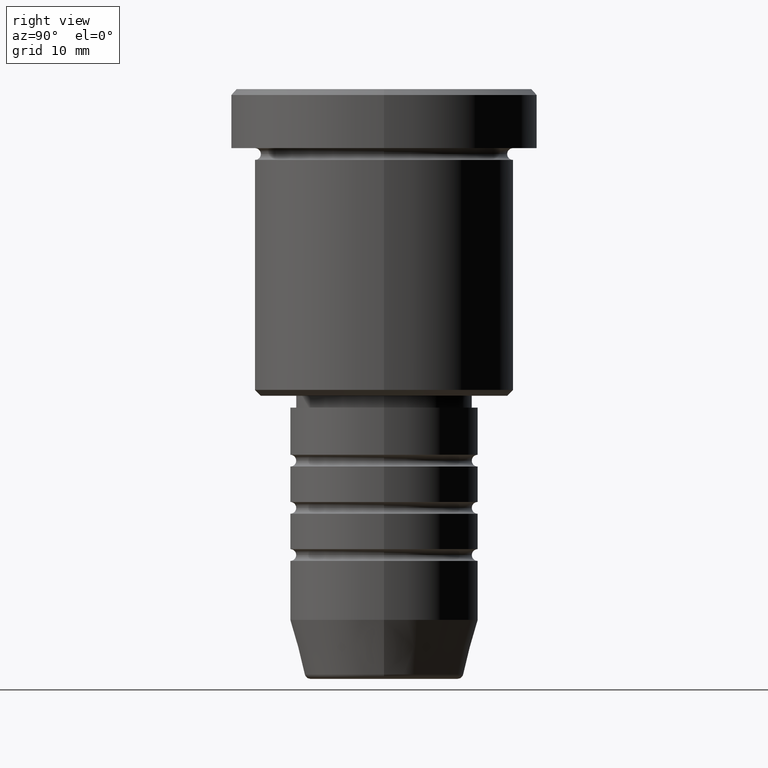
[diagram: clean part render]
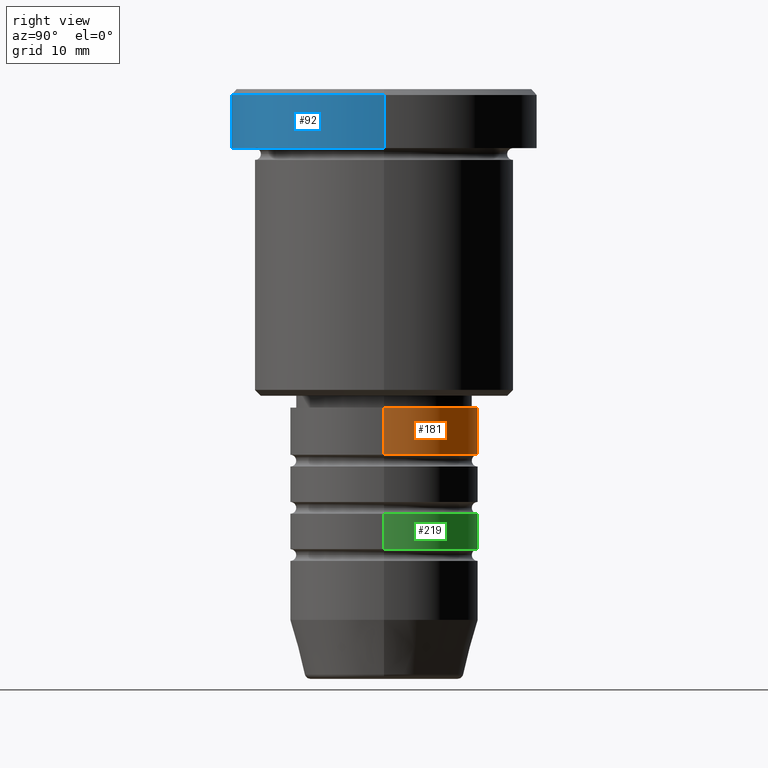
[diagram: same view with three faces highlighted in distinct colors, each labeled with its STEP entity id]
A machine part, right view with three faces highlighted in distinct colors.
Their STEP definitions:

[orange] entity #181 — the highlighted cylindrical surface (partial cylindrical patch) has radius 8 mm, axis along (-0, -0, 1).
#21 = CARTESIAN_POINT ( 'NONE',  ( 8.000000000000000000, 0.000000000000000000, -26.99999999999999645 ) ) ;
#46 = CARTESIAN_POINT ( 'NONE',  ( -8.000000000000000000, 9.797174393178825657E-16, -26.99999999999999645 ) ) ;
#49 = CIRCLE ( 'NONE', #323, 8.000000000000000000 ) ;
#59 = FACE_OUTER_BOUND ( 'NONE', #617, .T. ) ;
#127 = EDGE_CURVE ( 'NONE', #542, #723, #49, .T. ) ;
#133 = CARTESIAN_POINT ( 'NONE',  ( -8.000000000000000000, 9.797174393178825657E-16, 0.000000000000000000 ) ) ;
#161 = EDGE_CURVE ( 'NONE', #434, #534, #1125, .T. ) ;
#163 = ORIENTED_EDGE ( 'NONE', *, *, #127, .T. ) ;
#181 = ADVANCED_FACE ( 'NONE', ( #59 ), #425, .T. ) ;
#189 = CARTESIAN_POINT ( 'NONE',  ( 0.000000000000000000, 0.000000000000000000, -31.00000000000000000 ) ) ;
#239 = EDGE_CURVE ( 'NONE', #723, #534, #495, .T. ) ;
#244 = DIRECTION ( 'NONE',  ( -0.000000000000000000, -0.000000000000000000, 1.000000000000000000 ) ) ;
#249 = DIRECTION ( 'NONE',  ( -0.000000000000000000, -0.000000000000000000, 1.000000000000000000 ) ) ;
#315 = CARTESIAN_POINT ( 'NONE',  ( 8.000000000000000000, 0.000000000000000000, -31.00000000000000000 ) ) ;
#323 = AXIS2_PLACEMENT_3D ( 'NONE', #189, #912, #813 ) ;
#329 = EDGE_CURVE ( 'NONE', #542, #434, #433, .T. ) ;
#363 = CARTESIAN_POINT ( 'NONE',  ( 8.000000000000000000, 0.000000000000000000, 0.000000000000000000 ) ) ;
#425 = CYLINDRICAL_SURFACE ( 'NONE', #888, 8.000000000000000000 ) ;
#433 = LINE ( 'NONE', #363, #732 ) ;
#434 = VERTEX_POINT ( 'NONE', #21 ) ;
#495 = LINE ( 'NONE', #133, #942 ) ;
#503 = DIRECTION ( 'NONE',  ( 1.000000000000000000, 0.000000000000000000, 0.000000000000000000 ) ) ;
#515 = CARTESIAN_POINT ( 'NONE',  ( 0.000000000000000000, 0.000000000000000000, -26.99999999999999645 ) ) ;
#534 = VERTEX_POINT ( 'NONE', #46 ) ;
#542 = VERTEX_POINT ( 'NONE', #315 ) ;
#605 = AXIS2_PLACEMENT_3D ( 'NONE', #515, #249, #503 ) ;
#617 = EDGE_LOOP ( 'NONE', ( #163, #1034, #740, #932 ) ) ;
#680 = DIRECTION ( 'NONE',  ( 1.000000000000000000, 0.000000000000000000, 0.000000000000000000 ) ) ;
#723 = VERTEX_POINT ( 'NONE', #1011 ) ;
#732 = VECTOR ( 'NONE', #1160, 1000.000000000000000 ) ;
#740 = ORIENTED_EDGE ( 'NONE', *, *, #161, .F. ) ;
#813 = DIRECTION ( 'NONE',  ( 1.000000000000000000, 0.000000000000000000, 0.000000000000000000 ) ) ;
#878 = CARTESIAN_POINT ( 'NONE',  ( 0.000000000000000000, 0.000000000000000000, 0.000000000000000000 ) ) ;
#888 = AXIS2_PLACEMENT_3D ( 'NONE', #878, #986, #680 ) ;
#912 = DIRECTION ( 'NONE',  ( -0.000000000000000000, -0.000000000000000000, 1.000000000000000000 ) ) ;
#932 = ORIENTED_EDGE ( 'NONE', *, *, #329, .F. ) ;
#942 = VECTOR ( 'NONE', #244, 1000.000000000000000 ) ;
#986 = DIRECTION ( 'NONE',  ( -0.000000000000000000, -0.000000000000000000, 1.000000000000000000 ) ) ;
#1011 = CARTESIAN_POINT ( 'NONE',  ( -8.000000000000000000, 9.797174393178825657E-16, -31.00000000000000000 ) ) ;
#1034 = ORIENTED_EDGE ( 'NONE', *, *, #239, .T. ) ;
#1125 = CIRCLE ( 'NONE', #605, 8.000000000000000000 ) ;
#1160 = DIRECTION ( 'NONE',  ( -0.000000000000000000, -0.000000000000000000, 1.000000000000000000 ) ) ;

[blue] entity #92 — the highlighted cylindrical surface (partial cylindrical patch) has radius 13 mm, axis along (-0, -0, 1).
#37 = DIRECTION ( 'NONE',  ( -0.000000000000000000, -0.000000000000000000, 1.000000000000000000 ) ) ;
#92 = ADVANCED_FACE ( 'NONE', ( #679 ), #481, .T. ) ;
#151 = VECTOR ( 'NONE', #335, 1000.000000000000000 ) ;
#167 = EDGE_CURVE ( 'NONE', #614, #729, #322, .T. ) ;
#176 = VERTEX_POINT ( 'NONE', #607 ) ;
#182 = DIRECTION ( 'NONE',  ( 1.000000000000000000, 0.000000000000000000, 0.000000000000000000 ) ) ;
#203 = CARTESIAN_POINT ( 'NONE',  ( 0.000000000000000000, 0.000000000000000000, -5.000000000000000000 ) ) ;
#217 = VERTEX_POINT ( 'NONE', #517 ) ;
#253 = DIRECTION ( 'NONE',  ( 0.000000000000000000, 0.000000000000000000, -1.000000000000000000 ) ) ;
#263 = EDGE_CURVE ( 'NONE', #176, #217, #874, .T. ) ;
#285 = CARTESIAN_POINT ( 'NONE',  ( 13.00000000000000000, 0.000000000000000000, -5.000000000000000000 ) ) ;
#322 = LINE ( 'NONE', #689, #1074 ) ;
#328 = CIRCLE ( 'NONE', #468, 13.00000000000000000 ) ;
#335 = DIRECTION ( 'NONE',  ( -0.000000000000000000, -0.000000000000000000, 1.000000000000000000 ) ) ;
#403 = DIRECTION ( 'NONE',  ( 1.000000000000000000, 0.000000000000000000, 0.000000000000000000 ) ) ;
#416 = CARTESIAN_POINT ( 'NONE',  ( -13.00000000000000000, 1.592040838891559095E-15, 0.000000000000000000 ) ) ;
#431 = DIRECTION ( 'NONE',  ( -0.000000000000000000, -0.000000000000000000, 1.000000000000000000 ) ) ;
#446 = ORIENTED_EDGE ( 'NONE', *, *, #263, .F. ) ;
#468 = AXIS2_PLACEMENT_3D ( 'NONE', #794, #253, #182 ) ;
#481 = CYLINDRICAL_SURFACE ( 'NONE', #1017, 13.00000000000000000 ) ;
#517 = CARTESIAN_POINT ( 'NONE',  ( -13.00000000000000000, 1.592040838891559095E-15, -0.5000000000000004441 ) ) ;
#540 = EDGE_LOOP ( 'NONE', ( #446, #998, #1014, #710 ) ) ;
#607 = CARTESIAN_POINT ( 'NONE',  ( -13.00000000000000000, 1.592040838891559095E-15, -5.000000000000000000 ) ) ;
#614 = VERTEX_POINT ( 'NONE', #285 ) ;
#667 = CIRCLE ( 'NONE', #1166, 13.00000000000000000 ) ;
#679 = FACE_OUTER_BOUND ( 'NONE', #540, .T. ) ;
#689 = CARTESIAN_POINT ( 'NONE',  ( 13.00000000000000000, 0.000000000000000000, 0.000000000000000000 ) ) ;
#710 = ORIENTED_EDGE ( 'NONE', *, *, #951, .T. ) ;
#729 = VERTEX_POINT ( 'NONE', #815 ) ;
#794 = CARTESIAN_POINT ( 'NONE',  ( 0.000000000000000000, 0.000000000000000000, -0.5000000000000004441 ) ) ;
#815 = CARTESIAN_POINT ( 'NONE',  ( 13.00000000000000000, 0.000000000000000000, -0.5000000000000004441 ) ) ;
#845 = DIRECTION ( 'NONE',  ( 1.000000000000000000, 0.000000000000000000, 0.000000000000000000 ) ) ;
#858 = DIRECTION ( 'NONE',  ( -0.000000000000000000, -0.000000000000000000, 1.000000000000000000 ) ) ;
#870 = CARTESIAN_POINT ( 'NONE',  ( 0.000000000000000000, 0.000000000000000000, 0.000000000000000000 ) ) ;
#874 = LINE ( 'NONE', #416, #151 ) ;
#951 = EDGE_CURVE ( 'NONE', #729, #217, #328, .T. ) ;
#998 = ORIENTED_EDGE ( 'NONE', *, *, #1006, .T. ) ;
#1006 = EDGE_CURVE ( 'NONE', #176, #614, #667, .T. ) ;
#1014 = ORIENTED_EDGE ( 'NONE', *, *, #167, .T. ) ;
#1017 = AXIS2_PLACEMENT_3D ( 'NONE', #870, #37, #403 ) ;
#1074 = VECTOR ( 'NONE', #431, 1000.000000000000000 ) ;
#1166 = AXIS2_PLACEMENT_3D ( 'NONE', #203, #858, #845 ) ;

[green] entity #219 — the highlighted cylindrical surface (partial cylindrical patch) has radius 8 mm, axis along (-0, -0, 1).
#38 = CARTESIAN_POINT ( 'NONE',  ( 0.000000000000000000, 0.000000000000000000, -36.00000000000000000 ) ) ;
#88 = CARTESIAN_POINT ( 'NONE',  ( 8.000000000000000000, 0.000000000000000000, 0.000000000000000000 ) ) ;
#94 = ORIENTED_EDGE ( 'NONE', *, *, #834, .T. ) ;
#124 = EDGE_CURVE ( 'NONE', #903, #737, #1099, .T. ) ;
#138 = DIRECTION ( 'NONE',  ( 1.000000000000000000, 0.000000000000000000, 0.000000000000000000 ) ) ;
#153 = AXIS2_PLACEMENT_3D ( 'NONE', #289, #658, #1113 ) ;
#171 = VECTOR ( 'NONE', #721, 1000.000000000000000 ) ;
#198 = CARTESIAN_POINT ( 'NONE',  ( 8.000000000000000000, 0.000000000000000000, -36.00000000000000000 ) ) ;
#219 = ADVANCED_FACE ( 'NONE', ( #1135 ), #988, .T. ) ;
#289 = CARTESIAN_POINT ( 'NONE',  ( 0.000000000000000000, 0.000000000000000000, -38.99999999999999289 ) ) ;
#352 = VERTEX_POINT ( 'NONE', #372 ) ;
#372 = CARTESIAN_POINT ( 'NONE',  ( -8.000000000000000000, 9.797174393178825657E-16, -38.99999999999999289 ) ) ;
#387 = DIRECTION ( 'NONE',  ( -0.000000000000000000, -0.000000000000000000, 1.000000000000000000 ) ) ;
#408 = DIRECTION ( 'NONE',  ( -0.000000000000000000, -0.000000000000000000, 1.000000000000000000 ) ) ;
#472 = ORIENTED_EDGE ( 'NONE', *, *, #588, .F. ) ;
#556 = LINE ( 'NONE', #1043, #590 ) ;
#584 = EDGE_LOOP ( 'NONE', ( #94, #767, #472, #591 ) ) ;
#588 = EDGE_CURVE ( 'NONE', #737, #610, #1111, .T. ) ;
#590 = VECTOR ( 'NONE', #387, 1000.000000000000000 ) ;
#591 = ORIENTED_EDGE ( 'NONE', *, *, #124, .F. ) ;
#610 = VERTEX_POINT ( 'NONE', #1137 ) ;
#658 = DIRECTION ( 'NONE',  ( -0.000000000000000000, -0.000000000000000000, 1.000000000000000000 ) ) ;
#721 = DIRECTION ( 'NONE',  ( -0.000000000000000000, -0.000000000000000000, 1.000000000000000000 ) ) ;
#737 = VERTEX_POINT ( 'NONE', #198 ) ;
#767 = ORIENTED_EDGE ( 'NONE', *, *, #830, .T. ) ;
#772 = DIRECTION ( 'NONE',  ( -0.000000000000000000, -0.000000000000000000, 1.000000000000000000 ) ) ;
#786 = DIRECTION ( 'NONE',  ( 1.000000000000000000, 0.000000000000000000, 0.000000000000000000 ) ) ;
#830 = EDGE_CURVE ( 'NONE', #352, #610, #556, .T. ) ;
#834 = EDGE_CURVE ( 'NONE', #903, #352, #966, .T. ) ;
#887 = CARTESIAN_POINT ( 'NONE',  ( 8.000000000000000000, 0.000000000000000000, -38.99999999999999289 ) ) ;
#903 = VERTEX_POINT ( 'NONE', #887 ) ;
#963 = CARTESIAN_POINT ( 'NONE',  ( 0.000000000000000000, 0.000000000000000000, 0.000000000000000000 ) ) ;
#966 = CIRCLE ( 'NONE', #153, 8.000000000000000000 ) ;
#988 = CYLINDRICAL_SURFACE ( 'NONE', #1000, 8.000000000000000000 ) ;
#1000 = AXIS2_PLACEMENT_3D ( 'NONE', #963, #408, #786 ) ;
#1043 = CARTESIAN_POINT ( 'NONE',  ( -8.000000000000000000, 9.797174393178825657E-16, 0.000000000000000000 ) ) ;
#1099 = LINE ( 'NONE', #88, #171 ) ;
#1111 = CIRCLE ( 'NONE', #1147, 8.000000000000000000 ) ;
#1113 = DIRECTION ( 'NONE',  ( 1.000000000000000000, 0.000000000000000000, 0.000000000000000000 ) ) ;
#1135 = FACE_OUTER_BOUND ( 'NONE', #584, .T. ) ;
#1137 = CARTESIAN_POINT ( 'NONE',  ( -8.000000000000000000, 9.797174393178825657E-16, -36.00000000000000000 ) ) ;
#1147 = AXIS2_PLACEMENT_3D ( 'NONE', #38, #772, #138 ) ;